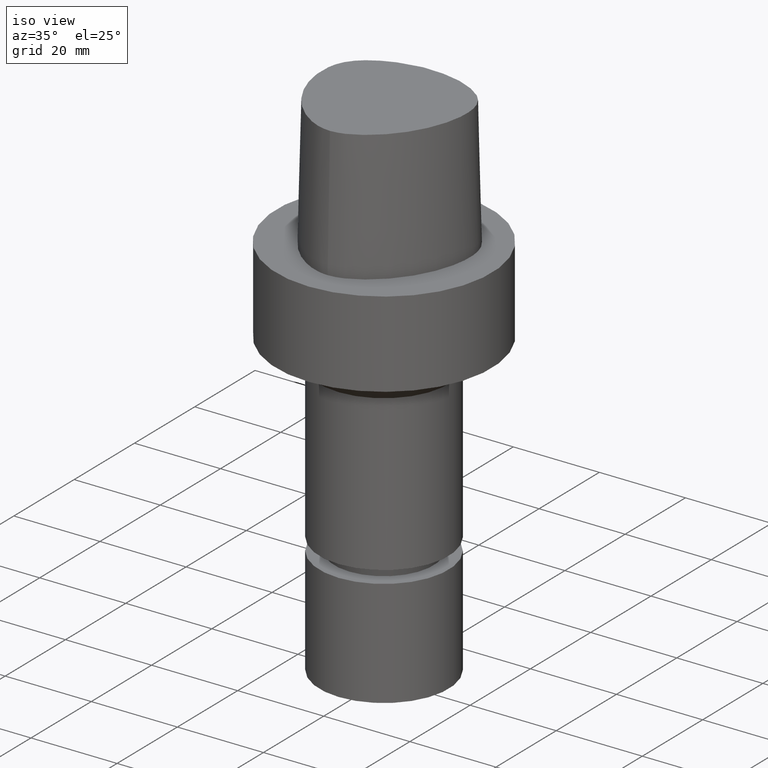
[diagram: clean part render]
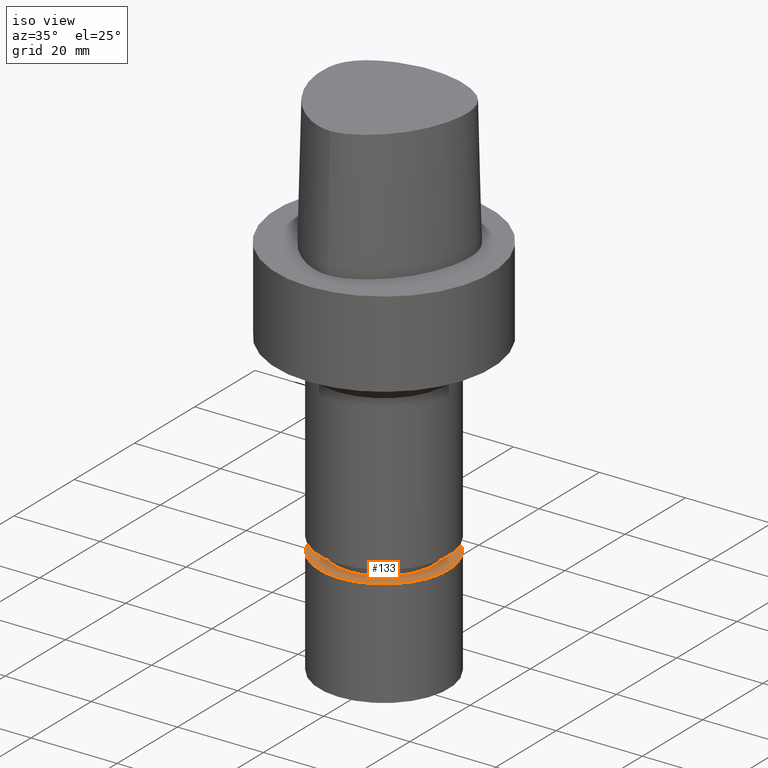
[diagram: same view with one face highlighted and labeled with its STEP entity id]
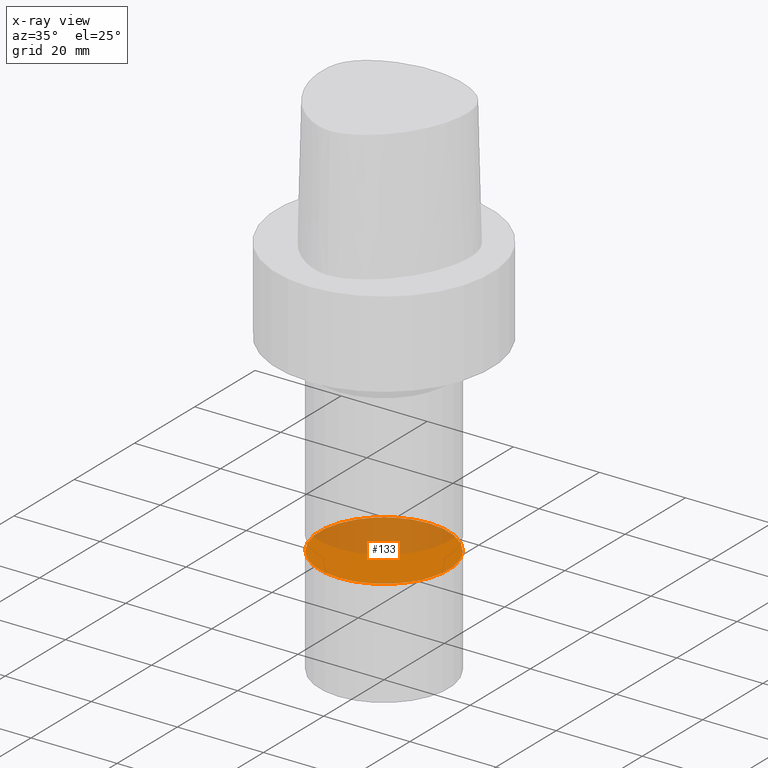
[diagram: x-ray of the same camera — body ghosted, the highlighted face saturated]
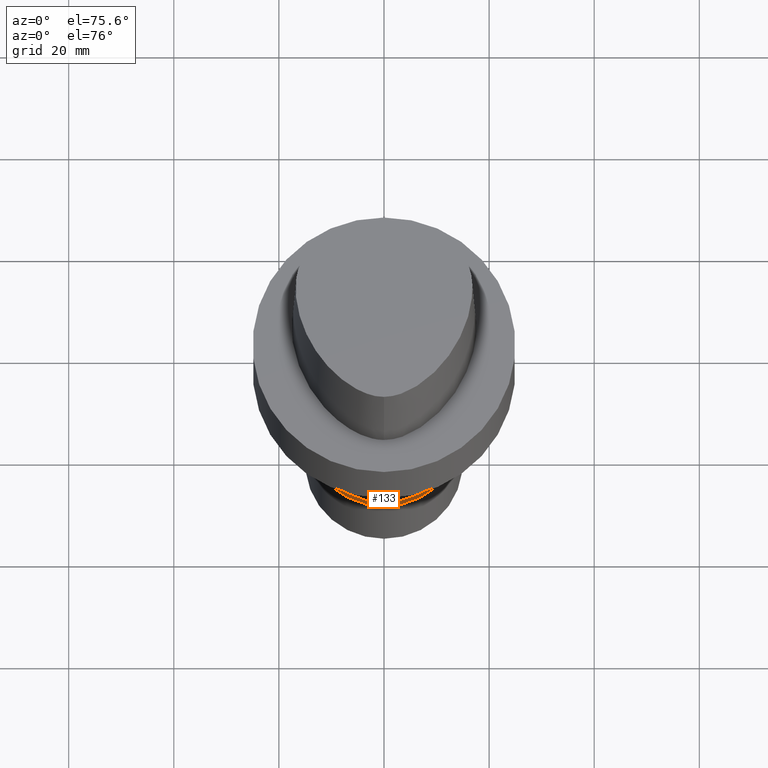
[diagram: same view with one face highlighted and labeled with its STEP entity id]
A machine part, iso view. The second image highlights one B-rep face of the part: STEP entity #133.
The next image is the same camera in x-ray: the body ghosted, the highlighted face saturated — about 46% of this face is hidden behind the body in this view.
A second angle (auxiliary view) of the same face is appended — the face is thin or edge-on in the first view.
In plain terms, the highlighted planar face has unit normal (-0, -0, 1).
Its self-contained STEP definition (entity closure, byte-faithful):
#114=EDGE_CURVE('Unnamed[1]',#241,#241,#242,.T.);
#133=ADVANCED_FACE('Unnamed[1]',(#269),#270,.T.);
#241=VERTEX_POINT('',#780);
#242=CIRCLE('',#781,15.0000000000001);
#269=FACE_OUTER_BOUND('',#864,.T.);
#270=PLANE('',#865);
#780=CARTESIAN_POINT('',(3.9801020972289E-015,15.0000000000001,-65.0));
#781=AXIS2_PLACEMENT_3D('',#1064,#1065,#1066);
#864=EDGE_LOOP('',(#1092));
#865=AXIS2_PLACEMENT_3D('',#1093,#1094,#1095);
#1064=CARTESIAN_POINT('',(3.9801020972289E-015,7.96020419445779E-015,-65.0));
#1065=DIRECTION('',(6.12323399573676E-017,1.22464679914735E-016,-1.0));
#1066=DIRECTION('',(-1.23259516440783E-032,1.0,1.22464679914735E-016));
#1092=ORIENTED_EDGE('',*,*,#114,.F.);
#1093=CARTESIAN_POINT('',(3.9801020972289E-015,7.50000000000004,-65.0));
#1094=DIRECTION('',(-6.12323399573677E-017,-1.22464679914735E-016,1.0));
#1095=DIRECTION('',(1.23259516440783E-032,-1.0,-1.22464679914735E-016));